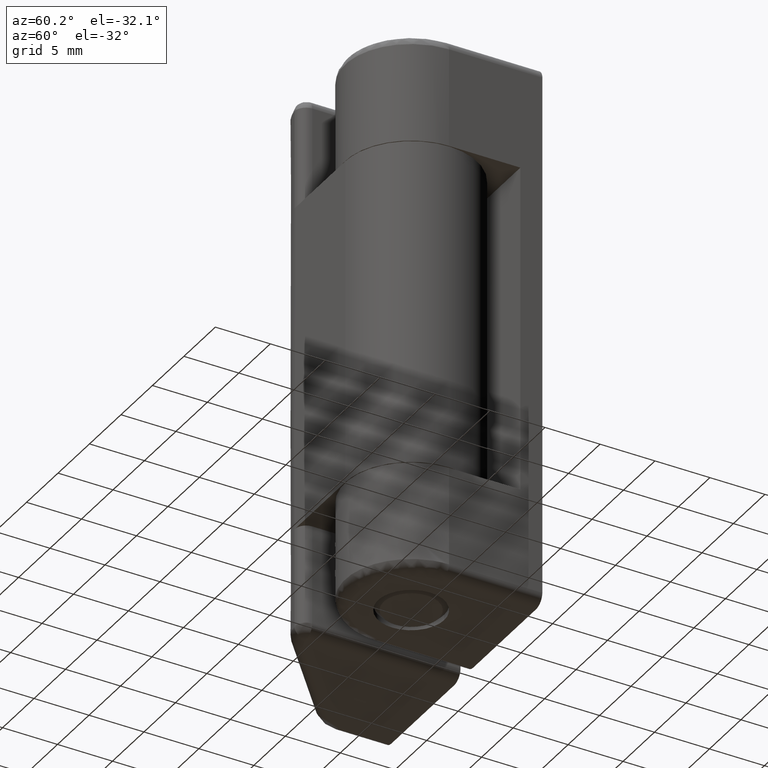
[diagram: clean part render]
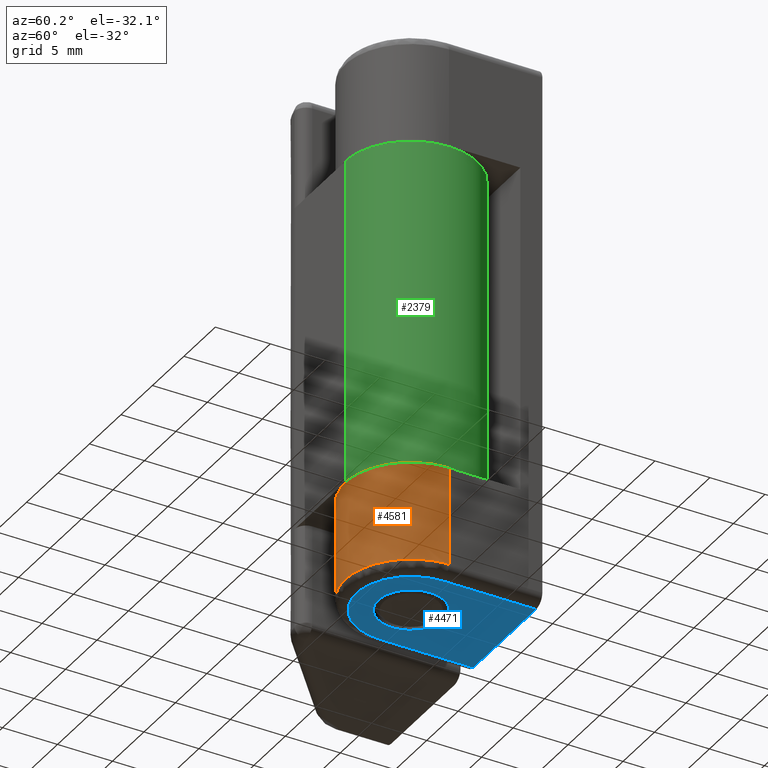
[diagram: same view with three faces highlighted in distinct colors, each labeled with its STEP entity id]
A machine part, auxiliary view with three faces highlighted in distinct colors.
Their STEP definitions:

[orange] entity #4581 — the highlighted face is a freeform B-spline surface patch.
#2914=CARTESIAN_POINT('',(-5.809607714485683,-1.499486379328178,5.039264908937023));
#2915=VERTEX_POINT('',#2914);
#2921=CARTESIAN_POINT('',(-6.0,0.000000523598774,6.500000000000000));
#2922=VERTEX_POINT('',#2921);
#2923=CARTESIAN_POINT('',(-5.809607714485683,-1.499486379328178,5.039264908937023));
#2924=CARTESIAN_POINT('',(-5.809848756316664,-1.498553715768413,5.074928416994942));
#2925=CARTESIAN_POINT('',(-5.810418779880407,-1.496344478714348,5.110682089617028));
#2926=CARTESIAN_POINT('',(-5.812569887120366,-1.487970577068869,5.195995205872931));
#2927=CARTESIAN_POINT('',(-5.814435283507160,-1.480689131644552,5.244891877449756));
#2928=CARTESIAN_POINT('',(-5.821715733562228,-1.451901443021197,5.389398953000171));
#2929=CARTESIAN_POINT('',(-5.828821977653937,-1.423494705857587,5.483087829209852));
#2930=CARTESIAN_POINT('',(-5.842252329637275,-1.366917489479453,5.619648556876532));
#2931=CARTESIAN_POINT('',(-5.847200135373754,-1.345664662387132,5.664523687144196));
#2932=CARTESIAN_POINT('',(-5.857658460474057,-1.299384533980993,5.751002627974235));
#2933=CARTESIAN_POINT('',(-5.868726293513413,-1.249137594486742,5.834725483096358));
#2934=CARTESIAN_POINT('',(-5.880672392925250,-1.191088027859659,5.913072305629096));
#2935=CARTESIAN_POINT('',(-5.892891489245751,-1.129082981449467,5.988718031806160));
#2936=CARTESIAN_POINT('',(-5.899171155770870,-1.095912335480101,6.025372661344452));
#2937=CARTESIAN_POINT('',(-5.917886838566101,-0.991762095702393,6.129628130088698));
#2938=CARTESIAN_POINT('',(-5.930152238370008,-0.916508199043922,6.191439384523228));
#2939=CARTESIAN_POINT('',(-5.947240173789774,-0.794989010962332,6.272938036169190));
#2940=CARTESIAN_POINT('',(-5.952718566431793,-0.753032348826836,6.298220384686836));
#2941=CARTESIAN_POINT('',(-5.963071785631350,-0.666101290292108,6.344895147090395));
#2942=CARTESIAN_POINT('',(-5.967905845290985,-0.621422623497491,6.366102288481011));
#2943=CARTESIAN_POINT('',(-5.981001210663077,-0.485684608627798,6.422573941590215));
#2944=CARTESIAN_POINT('',(-5.987948230881791,-0.392199081395698,6.451164391597958));
#2945=CARTESIAN_POINT('',(-5.995093022430901,-0.247377618616530,6.480279995990704));
#2946=CARTESIAN_POINT('',(-5.996931582894626,-0.198124356049238,6.487686504914585));
#2947=CARTESIAN_POINT('',(-5.999381266362484,-0.099328199409261,6.497530736301268));
#2948=CARTESIAN_POINT('',(-6.0,-0.049753216362407,6.500000000000109));
#2949=CARTESIAN_POINT('',(-6.0,0.000000523598774,6.500000000000000));
#2950=B_SPLINE_CURVE_WITH_KNOTS('',3,(#2923,#2924,#2925,#2926,#2927,#2928,#2929,#2930,#2931,#2932,#2933,#2934,#2935,#2936,#2937,#2938,#2939,#2940,#2941,#2942,#2943,#2944,#2945,#2946,#2947,#2948,#2949),.UNSPECIFIED.,.F.,.U.,(4,2,2,2,2,1,2,2,2,2,2,2,2,4),(0.508604775649359,0.531250000000002,0.562500000000002,0.625000000000002,0.656250000000002,0.687500000000002,0.718750000000002,0.750000000000001,0.812500000000001,0.843750000000001,0.875000000000001,0.937500000000000,0.968750000000000,1.0),.UNSPECIFIED.);
#2951=EDGE_CURVE('',#2915,#2922,#2950,.T.);
#3095=CARTESIAN_POINT('',(-6.0,0.000000523598774,3.500000000000195));
#3096=VERTEX_POINT('',#3095);
#3110=CARTESIAN_POINT('',(-6.0,0.000000523598775,3.500000000000205));
#3111=CARTESIAN_POINT('',(-6.000000008683308,-0.099502846860984,3.499999965266979));
#3112=CARTESIAN_POINT('',(-5.997528204947451,-0.197266756283201,3.509802090099004));
#3113=CARTESIAN_POINT('',(-5.990470919858512,-0.341427655438425,3.538552720056744));
#3114=CARTESIAN_POINT('',(-5.987559596295391,-0.389064136995112,3.550495238065010));
#3115=CARTESIAN_POINT('',(-5.980675548326995,-0.483488166895917,3.579199468595401));
#3116=CARTESIAN_POINT('',(-5.976691795614755,-0.530313111807673,3.596012418170004));
#3117=CARTESIAN_POINT('',(-5.963574436934676,-0.666398679796316,3.652570853247520));
#3118=CARTESIAN_POINT('',(-5.953205529820091,-0.752392912092468,3.698659987504318));
#3119=CARTESIAN_POINT('',(-5.936078920497546,-0.874445448976994,3.780270363016618));
#3120=CARTESIAN_POINT('',(-5.930074732065189,-0.914162604429563,3.809738522725215));
#3121=CARTESIAN_POINT('',(-5.917866540619711,-0.990118782080792,3.872134560777458));
#3122=CARTESIAN_POINT('',(-5.911678335138625,-1.026295837428155,3.904971038414424));
#3123=CARTESIAN_POINT('',(-5.893124037088307,-1.129594891884235,4.008283472576981));
#3124=CARTESIAN_POINT('',(-5.880763528813408,-1.191537706100465,4.083513059433561));
#3125=CARTESIAN_POINT('',(-5.863298303241132,-1.273781164066242,4.206331838617734));
#3126=CARTESIAN_POINT('',(-5.857704804483944,-1.299174778555418,4.248642711266996));
#3127=CARTESIAN_POINT('',(-5.847268240863816,-1.345367905479458,4.334884912610936));
#3128=CARTESIAN_POINT('',(-5.837535430971628,-1.387186003208335,4.423070120631578));
#3129=CARTESIAN_POINT('',(-5.829484700996527,-1.420326238094787,4.515137772523955));
#3130=CARTESIAN_POINT('',(-5.822415651140362,-1.449032258829601,4.609201439198245));
#3131=CARTESIAN_POINT('',(-5.819360104071795,-1.461214476042416,4.657520053495855));
#3132=CARTESIAN_POINT('',(-5.812014229217555,-1.490264963959857,4.802841758458685));
#3133=CARTESIAN_POINT('',(-5.809498015744810,-1.499910935156933,4.900407669417813));
#3134=CARTESIAN_POINT('',(-5.809472031854163,-1.500011570376193,5.012174970332964));
#3135=CARTESIAN_POINT('',(-5.809516122950047,-1.499841296463198,5.025713434606097));
#3136=CARTESIAN_POINT('',(-5.809607714485683,-1.499486379328178,5.039264908937023));
#3137=B_SPLINE_CURVE_WITH_KNOTS('',3,(#3110,#3111,#3112,#3113,#3114,#3115,#3116,#3117,#3118,#3119,#3120,#3121,#3122,#3123,#3124,#3125,#3126,#3127,#3128,#3129,#3130,#3131,#3132,#3133,#3134,#3135,#3136),.UNSPECIFIED.,.F.,.U.,(4,2,2,2,2,2,2,2,2,1,2,2,2,4),(0.0,0.062500000000000,0.093750000000001,0.125000000000001,0.187500000000001,0.218750000000001,0.250000000000002,0.312500000000002,0.343750000000002,0.375000000000002,0.406250000000002,0.437500000000002,0.500000000000002,0.508604775649359),.UNSPECIFIED.);
#3138=EDGE_CURVE('',#3096,#2915,#3137,.T.);
#3906=CARTESIAN_POINT('',(-6.0,0.000000523598774,1.0));
#3907=VERTEX_POINT('',#3906);
#3976=CARTESIAN_POINT('',(6.0,0.0,1.0));
#3977=VERTEX_POINT('',#3976);
#3991=CARTESIAN_POINT('',(-5.999999999999978,0.000000523598773,1.0));
#3992=CARTESIAN_POINT('',(-6.000000302299879,-3.464101207894251,1.0));
#3993=CARTESIAN_POINT('',(-3.000000302299890,-5.196152248173697,1.0));
#3994=CARTESIAN_POINT('',(-0.000000302299898,-6.928203288453146,1.0));
#3995=CARTESIAN_POINT('',(2.999999848850051,-5.196152509973093,1.0));
#3996=CARTESIAN_POINT('',(6.0,-3.464101731493041,1.0));
#3997=CARTESIAN_POINT('',(6.0,0.0,1.0));
#4005=(BOUNDED_CURVE()B_SPLINE_CURVE(2,(#3991,#3992,#3993,#3994,#3995,#3996,#3997),.UNSPECIFIED.,.F.,.U.)B_SPLINE_CURVE_WITH_KNOTS((3,2,2,3),(0.0,0.333333333333333,0.666666666666667,1.0),.UNSPECIFIED.)CURVE()GEOMETRIC_REPRESENTATION_ITEM()RATIONAL_B_SPLINE_CURVE((1.0,0.866025396512233,1.0,0.866025396512233,1.0,0.866025396512233,1.0))REPRESENTATION_ITEM(''));
#4006=EDGE_CURVE('',#3907,#3977,#4005,.T.);
#4319=CARTESIAN_POINT('',(6.000000000000120,0.0,10.0));
#4320=VERTEX_POINT('',#4319);
#4333=CARTESIAN_POINT('',(-6.0,0.000000523598775,10.0));
#4334=VERTEX_POINT('',#4333);
#4340=CARTESIAN_POINT('',(6.000000000000120,0.0,10.0));
#4341=CARTESIAN_POINT('',(6.0,-3.464101731493039,10.000000000000123));
#4342=CARTESIAN_POINT('',(2.999999848850052,-5.196152509973092,10.000000000000121));
#4343=CARTESIAN_POINT('',(-0.000000302299896,-6.928203288453146,10.000000000000123));
#4344=CARTESIAN_POINT('',(-3.000000302299888,-5.196152248173698,10.000000000000121));
#4345=CARTESIAN_POINT('',(-6.000000302299881,-3.464101207894252,10.000000000000123));
#4346=CARTESIAN_POINT('',(-6.0,0.000000523598775,10.0));
#4354=(BOUNDED_CURVE()B_SPLINE_CURVE(2,(#4340,#4341,#4342,#4343,#4344,#4345,#4346),.UNSPECIFIED.,.F.,.U.)B_SPLINE_CURVE_WITH_KNOTS((3,2,2,3),(0.0,0.333333333333333,0.666666666666667,1.0),.UNSPECIFIED.)CURVE()GEOMETRIC_REPRESENTATION_ITEM()RATIONAL_B_SPLINE_CURVE((1.0,0.866025396512233,1.0,0.866025396512233,1.0,0.866025396512233,1.0))REPRESENTATION_ITEM(''));
#4355=EDGE_CURVE('',#4320,#4334,#4354,.T.);
#4497=CARTESIAN_POINT('',(-6.0,0.000000523598774,3.500000000000195));
#4498=CARTESIAN_POINT('',(-6.0,0.000000523598774,1.0));
#4499=QUASI_UNIFORM_CURVE('',1,(#4497,#4498),.UNSPECIFIED.,.F.,.U.);
#4500=EDGE_CURVE('',#3096,#3907,#4499,.T.);
#4504=CARTESIAN_POINT('',(-6.0,0.000000523598775,10.0));
#4505=CARTESIAN_POINT('',(-6.0,0.000000523598774,6.500000000000000));
#4506=QUASI_UNIFORM_CURVE('',1,(#4504,#4505),.UNSPECIFIED.,.F.,.U.);
#4507=EDGE_CURVE('',#4334,#2922,#4506,.T.);
#4550=CARTESIAN_POINT('',(-5.994289329491145,0.261716324192008,10.225000000000129));
#4551=CARTESIAN_POINT('',(-5.994289329491145,0.261716324192008,0.769374999999997));
#4552=CARTESIAN_POINT('',(-6.272501975714298,-6.110400897511916,10.225000000000126));
#4553=CARTESIAN_POINT('',(-6.272501975714298,-6.110400897511916,0.769374999999997));
#4554=CARTESIAN_POINT('',(0.104714438623708,-5.999086170938345,10.225000000000129));
#4555=CARTESIAN_POINT('',(0.104714438623708,-5.999086170938345,0.769374999999997));
#4556=CARTESIAN_POINT('',(6.481930852961710,-5.887771444364773,10.225000000000126));
#4557=CARTESIAN_POINT('',(6.481930852961710,-5.887771444364773,0.769374999999997));
#4558=CARTESIAN_POINT('',(5.981504002398763,0.470754574367074,10.225000000000129));
#4559=CARTESIAN_POINT('',(5.981504002398763,0.470754574367074,0.769374999999997));
#4567=(BOUNDED_SURFACE()B_SPLINE_SURFACE(1,2,((#4550,#4552,#4554,#4556,#4558),(#4551,#4553,#4555,#4557,#4559)),.UNSPECIFIED.,.F.,.F.,.U.)B_SPLINE_SURFACE_WITH_KNOTS((2,2),(3,2,3),(0.0,9.455625000000129),(0.0,10.373296774015129,20.746593548030269),.UNSPECIFIED.)GEOMETRIC_REPRESENTATION_ITEM()RATIONAL_B_SPLINE_SURFACE(((1.0,0.685182990326359,1.0,0.685182990326359,1.0),(1.0,0.685182990326359,1.0,0.685182990326359,1.0)))REPRESENTATION_ITEM('')SURFACE());
#4568=ORIENTED_EDGE('',*,*,#4500,.T.);
#4569=ORIENTED_EDGE('',*,*,#4006,.T.);
#4570=CARTESIAN_POINT('',(6.000000000000120,0.0,10.0));
#4571=CARTESIAN_POINT('',(6.0,0.0,1.0));
#4572=QUASI_UNIFORM_CURVE('',1,(#4570,#4571),.UNSPECIFIED.,.F.,.U.);
#4573=EDGE_CURVE('',#4320,#3977,#4572,.T.);
#4574=ORIENTED_EDGE('',*,*,#4573,.F.);
#4575=ORIENTED_EDGE('',*,*,#4355,.T.);
#4576=ORIENTED_EDGE('',*,*,#4507,.T.);
#4577=ORIENTED_EDGE('',*,*,#2951,.F.);
#4578=ORIENTED_EDGE('',*,*,#3138,.F.);
#4579=EDGE_LOOP('',(#4568,#4569,#4574,#4575,#4576,#4577,#4578));
#4580=FACE_OUTER_BOUND('',#4579,.T.);
#4581=ADVANCED_FACE('',(#4580),#4567,.T.);

[blue] entity #4471 — the highlighted face is a freeform B-spline surface patch.
#3750=CARTESIAN_POINT('',(-0.026179606635467,2.999885769191288,-3.469447E-016));
#3751=VERTEX_POINT('',#3750);
#3757=CARTESIAN_POINT('',(3.0,0.0,0.0));
#3758=VERTEX_POINT('',#3757);
#3759=CARTESIAN_POINT('',(-0.026179606635467,2.999885769191288,-3.469447E-016));
#3760=CARTESIAN_POINT('',(-0.013090052602466,3.000000000000000,0.0));
#3761=CARTESIAN_POINT('',(0.0,3.0,0.0));
#3762=CARTESIAN_POINT('',(3.0,3.0,0.0));
#3763=CARTESIAN_POINT('',(3.0,0.0,0.0));
#3771=(BOUNDED_CURVE()B_SPLINE_CURVE(2,(#3759,#3760,#3761,#3762,#3763),.UNSPECIFIED.,.F.,.U.)B_SPLINE_CURVE_WITH_KNOTS((3,2,3),(0.748460105648531,0.750000000000000,1.0),.UNSPECIFIED.)CURVE()GEOMETRIC_REPRESENTATION_ITEM()RATIONAL_B_SPLINE_CURVE((0.996414028062262,0.998195901547062,1.0,0.707106781186548,1.0))REPRESENTATION_ITEM(''));
#3772=EDGE_CURVE('',#3751,#3758,#3771,.T.);
#3774=CARTESIAN_POINT('',(0.372384006283364,-2.976798641471127,-3.480737E-016));
#3775=VERTEX_POINT('',#3774);
#3776=CARTESIAN_POINT('',(3.0,0.0,0.0));
#3777=CARTESIAN_POINT('',(3.000000000000000,-2.648095800372002,0.0));
#3778=CARTESIAN_POINT('',(0.372384006283364,-2.976798641471127,-3.480737E-016));
#3786=(BOUNDED_CURVE()B_SPLINE_CURVE(2,(#3776,#3777,#3778),.UNSPECIFIED.,.F.,.U.)B_SPLINE_CURVE_WITH_KNOTS((3,3),(0.0,0.228526071024327),.UNSPECIFIED.)CURVE()GEOMETRIC_REPRESENTATION_ITEM()RATIONAL_B_SPLINE_CURVE((1.0,0.732265053899574,0.954005430265069))REPRESENTATION_ITEM(''));
#3787=EDGE_CURVE('',#3758,#3775,#3786,.T.);
#3837=CARTESIAN_POINT('',(-3.0,0.0,0.0));
#3838=VERTEX_POINT('',#3837);
#3839=CARTESIAN_POINT('',(0.372384006283364,-2.976798641471127,-3.480737E-016));
#3840=CARTESIAN_POINT('',(0.186914782644880,-3.000000000000000,0.0));
#3841=CARTESIAN_POINT('',(0.0,-3.0,0.0));
#3842=CARTESIAN_POINT('',(-3.0,-3.0,0.0));
#3843=CARTESIAN_POINT('',(-3.0,0.0,0.0));
#3851=(BOUNDED_CURVE()B_SPLINE_CURVE(2,(#3839,#3840,#3841,#3842,#3843),.UNSPECIFIED.,.F.,.U.)B_SPLINE_CURVE_WITH_KNOTS((3,2,3),(0.228526071024327,0.250000000000000,0.500000000000000),.UNSPECIFIED.)CURVE()GEOMETRIC_REPRESENTATION_ITEM()RATIONAL_B_SPLINE_CURVE((0.954005430265069,0.974841727286974,1.0,0.707106781186548,1.0))REPRESENTATION_ITEM(''));
#3852=EDGE_CURVE('',#3775,#3838,#3851,.T.);
#3854=CARTESIAN_POINT('',(-3.0,0.0,0.0));
#3855=CARTESIAN_POINT('',(-3.0,2.973933631506656,0.0));
#3856=CARTESIAN_POINT('',(-0.026179606635467,2.999885769191288,-3.469447E-016));
#3864=(BOUNDED_CURVE()B_SPLINE_CURVE(2,(#3854,#3855,#3856),.UNSPECIFIED.,.F.,.U.)B_SPLINE_CURVE_WITH_KNOTS((3,3),(0.500000000000000,0.748460105648531),.UNSPECIFIED.)CURVE()GEOMETRIC_REPRESENTATION_ITEM()RATIONAL_B_SPLINE_CURVE((1.0,0.708910879639485,0.996414028062263))REPRESENTATION_ITEM(''));
#3865=EDGE_CURVE('',#3838,#3751,#3864,.T.);
#3904=CARTESIAN_POINT('',(-5.0,0.000000523598774,0.0));
#3905=VERTEX_POINT('',#3904);
#3928=CARTESIAN_POINT('',(-5.0,8.500000000000000,0.0));
#3929=VERTEX_POINT('',#3928);
#3943=CARTESIAN_POINT('',(-5.0,0.000000523598774,0.0));
#3944=CARTESIAN_POINT('',(-5.0,8.500000000000000,0.0));
#3945=QUASI_UNIFORM_CURVE('',1,(#3943,#3944),.UNSPECIFIED.,.F.,.U.);
#3946=EDGE_CURVE('',#3905,#3929,#3945,.T.);
#3974=CARTESIAN_POINT('',(5.000000000000100,0.0,0.0));
#3975=VERTEX_POINT('',#3974);
#4009=CARTESIAN_POINT('',(5.000000000000100,0.0,0.0));
#4010=CARTESIAN_POINT('',(5.000000000000001,-2.886751462303413,0.0));
#4011=CARTESIAN_POINT('',(2.499999848850052,-4.330127106188653,0.0));
#4012=CARTESIAN_POINT('',(-0.000000302299895,-5.773502750073893,0.0));
#4013=CARTESIAN_POINT('',(-2.500000302299886,-4.330126844389258,0.0));
#4014=CARTESIAN_POINT('',(-5.000000302299878,-2.886750938704624,0.0));
#4015=CARTESIAN_POINT('',(-5.0,0.000000523598774,0.0));
#4023=(BOUNDED_CURVE()B_SPLINE_CURVE(2,(#4009,#4010,#4011,#4012,#4013,#4014,#4015),.UNSPECIFIED.,.F.,.U.)B_SPLINE_CURVE_WITH_KNOTS((3,2,2,3),(0.0,0.333333333333333,0.666666666666667,1.0),.UNSPECIFIED.)CURVE()GEOMETRIC_REPRESENTATION_ITEM()RATIONAL_B_SPLINE_CURVE((1.0,0.866025395057792,1.0,0.866025395057792,1.0,0.866025395057792,1.0))REPRESENTATION_ITEM(''));
#4024=EDGE_CURVE('',#3975,#3905,#4023,.T.);
#4045=CARTESIAN_POINT('',(5.000000000000100,8.500000000000000,0.0));
#4046=VERTEX_POINT('',#4045);
#4066=CARTESIAN_POINT('',(5.000000000000100,8.500000000000000,0.0));
#4067=CARTESIAN_POINT('',(5.000000000000100,0.0,0.0));
#4068=QUASI_UNIFORM_CURVE('',1,(#4066,#4067),.UNSPECIFIED.,.F.,.U.);
#4069=EDGE_CURVE('',#4046,#3975,#4068,.T.);
#4415=CARTESIAN_POINT('',(-5.0,8.500000000000000,0.0));
#4416=CARTESIAN_POINT('',(5.000000000000100,8.500000000000000,0.0));
#4417=QUASI_UNIFORM_CURVE('',1,(#4415,#4416),.UNSPECIFIED.,.F.,.U.);
#4418=EDGE_CURVE('',#3929,#4046,#4417,.T.);
#4454=CARTESIAN_POINT('',(-5.499499980618064,-5.674324973834372,0.0));
#4455=CARTESIAN_POINT('',(5.499500248839064,-5.674324973834372,0.0));
#4456=CARTESIAN_POINT('',(-5.499499980618064,9.174325335932595,0.0));
#4457=CARTESIAN_POINT('',(5.499500248839064,9.174325335932595,0.0));
#4458=B_SPLINE_SURFACE_WITH_KNOTS('',1,1,((#4454,#4456),(#4455,#4457)),.UNSPECIFIED.,.F.,.F.,.U.,(2,2),(2,2),(0.0,10.999000229457129),(0.0,14.848650309766970),.UNSPECIFIED.);
#4459=ORIENTED_EDGE('',*,*,#4024,.T.);
#4460=ORIENTED_EDGE('',*,*,#3946,.T.);
#4461=ORIENTED_EDGE('',*,*,#4418,.T.);
#4462=ORIENTED_EDGE('',*,*,#4069,.T.);
#4463=EDGE_LOOP('',(#4459,#4460,#4461,#4462));
#4464=FACE_OUTER_BOUND('',#4463,.T.);
#4465=ORIENTED_EDGE('',*,*,#3865,.F.);
#4466=ORIENTED_EDGE('',*,*,#3852,.F.);
#4467=ORIENTED_EDGE('',*,*,#3787,.F.);
#4468=ORIENTED_EDGE('',*,*,#3772,.F.);
#4469=EDGE_LOOP('',(#4465,#4466,#4467,#4468));
#4470=FACE_BOUND('',#4469,.T.);
#4471=ADVANCED_FACE('',(#4464,#4470),#4458,.F.);

[green] entity #2379 — the highlighted face is a freeform B-spline surface patch.
#2288=CARTESIAN_POINT('',(3.673819E-016,-6.0,39.949997000000153));
#2289=VERTEX_POINT('',#2288);
#2304=CARTESIAN_POINT('',(3.673819E-016,-6.0,10.050003000000141));
#2305=VERTEX_POINT('',#2304);
#2311=CARTESIAN_POINT('',(3.673819E-016,-6.0,10.050003000000141));
#2312=CARTESIAN_POINT('',(3.673819E-016,-6.0,39.949997000000153));
#2313=QUASI_UNIFORM_CURVE('',1,(#2311,#2312),.UNSPECIFIED.,.F.,.U.);
#2314=EDGE_CURVE('',#2305,#2289,#2313,.T.);
#2319=CARTESIAN_POINT('',(-0.052359212990238,5.999771538385026,9.302503150000138));
#2320=CARTESIAN_POINT('',(-0.052359212990238,5.999771538385026,40.716184346250159));
#2321=CARTESIAN_POINT('',(6.160586090825333,6.053991090642636,9.302503150000138));
#2322=CARTESIAN_POINT('',(6.160586090825333,6.053991090642636,40.716184346250166));
#2323=CARTESIAN_POINT('',(5.997943949853342,-0.157061689847240,9.302503150000138));
#2324=CARTESIAN_POINT('',(5.997943949853342,-0.157061689847240,40.716184346250159));
#2325=CARTESIAN_POINT('',(5.835301808881352,-6.368114470337116,9.302503150000138));
#2326=CARTESIAN_POINT('',(5.835301808881352,-6.368114470337116,40.716184346250166));
#2327=CARTESIAN_POINT('',(-0.366291237209140,-5.988808790531200,9.302503150000138));
#2328=CARTESIAN_POINT('',(-0.366291237209140,-5.988808790531200,40.716184346250159));
#2336=(BOUNDED_SURFACE()B_SPLINE_SURFACE(1,2,((#2319,#2321,#2323,#2325,#2327),(#2320,#2322,#2324,#2326,#2328)),.UNSPECIFIED.,.F.,.F.,.U.)B_SPLINE_SURFACE_WITH_KNOTS((2,2),(3,2,3),(0.0,31.413681196250032),(0.0,10.187395589030510,20.374791178061020),.UNSPECIFIED.)GEOMETRIC_REPRESENTATION_ITEM()RATIONAL_B_SPLINE_SURFACE(((1.0,0.694658370458997,1.0,0.694658370458997,1.0),(1.0,0.694658370458997,1.0,0.694658370458997,1.0)))REPRESENTATION_ITEM('')SURFACE());
#2337=CARTESIAN_POINT('',(0.0,6.0,39.949997000000153));
#2338=VERTEX_POINT('',#2337);
#2339=CARTESIAN_POINT('',(0.0,6.0,39.949997000000153));
#2340=CARTESIAN_POINT('',(6.0,6.0,39.949997000000153));
#2341=CARTESIAN_POINT('',(6.0,0.0,39.949997000000153));
#2342=CARTESIAN_POINT('',(6.0,-6.0,39.949997000000153));
#2343=CARTESIAN_POINT('',(0.0,-6.0,39.949997000000153));
#2351=(BOUNDED_CURVE()B_SPLINE_CURVE(2,(#2339,#2340,#2341,#2342,#2343),.UNSPECIFIED.,.F.,.U.)B_SPLINE_CURVE_WITH_KNOTS((3,2,3),(0.0,0.500000000000000,1.0),.UNSPECIFIED.)CURVE()GEOMETRIC_REPRESENTATION_ITEM()RATIONAL_B_SPLINE_CURVE((1.0,0.707106781186548,1.0,0.707106781186548,1.0))REPRESENTATION_ITEM(''));
#2352=EDGE_CURVE('',#2338,#2289,#2351,.T.);
#2353=ORIENTED_EDGE('',*,*,#2352,.T.);
#2354=ORIENTED_EDGE('',*,*,#2314,.F.);
#2355=CARTESIAN_POINT('',(0.0,6.0,10.050003000000141));
#2356=VERTEX_POINT('',#2355);
#2357=CARTESIAN_POINT('',(0.0,6.0,10.050003000000141));
#2358=CARTESIAN_POINT('',(6.0,6.0,10.050003000000141));
#2359=CARTESIAN_POINT('',(6.0,0.0,10.050003000000141));
#2360=CARTESIAN_POINT('',(6.0,-6.0,10.050003000000141));
#2361=CARTESIAN_POINT('',(0.0,-6.0,10.050003000000141));
#2369=(BOUNDED_CURVE()B_SPLINE_CURVE(2,(#2357,#2358,#2359,#2360,#2361),.UNSPECIFIED.,.F.,.U.)B_SPLINE_CURVE_WITH_KNOTS((3,2,3),(0.0,0.500000000000000,1.0),.UNSPECIFIED.)CURVE()GEOMETRIC_REPRESENTATION_ITEM()RATIONAL_B_SPLINE_CURVE((1.0,0.707106781186548,1.0,0.707106781186548,1.0))REPRESENTATION_ITEM(''));
#2370=EDGE_CURVE('',#2356,#2305,#2369,.T.);
#2371=ORIENTED_EDGE('',*,*,#2370,.F.);
#2372=CARTESIAN_POINT('',(0.0,6.0,10.050003000000141));
#2373=CARTESIAN_POINT('',(0.0,6.0,39.949997000000153));
#2374=QUASI_UNIFORM_CURVE('',1,(#2372,#2373),.UNSPECIFIED.,.F.,.U.);
#2375=EDGE_CURVE('',#2356,#2338,#2374,.T.);
#2376=ORIENTED_EDGE('',*,*,#2375,.T.);
#2377=EDGE_LOOP('',(#2353,#2354,#2371,#2376));
#2378=FACE_OUTER_BOUND('',#2377,.T.);
#2379=ADVANCED_FACE('',(#2378),#2336,.T.);